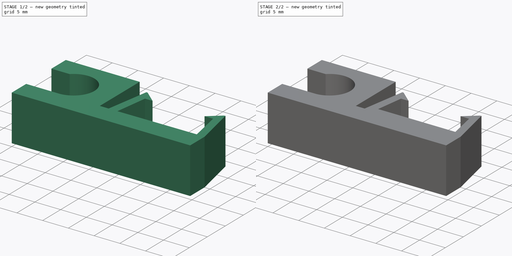
[diagram: build sequence overview — one tinted view per stage of 2, left to right]
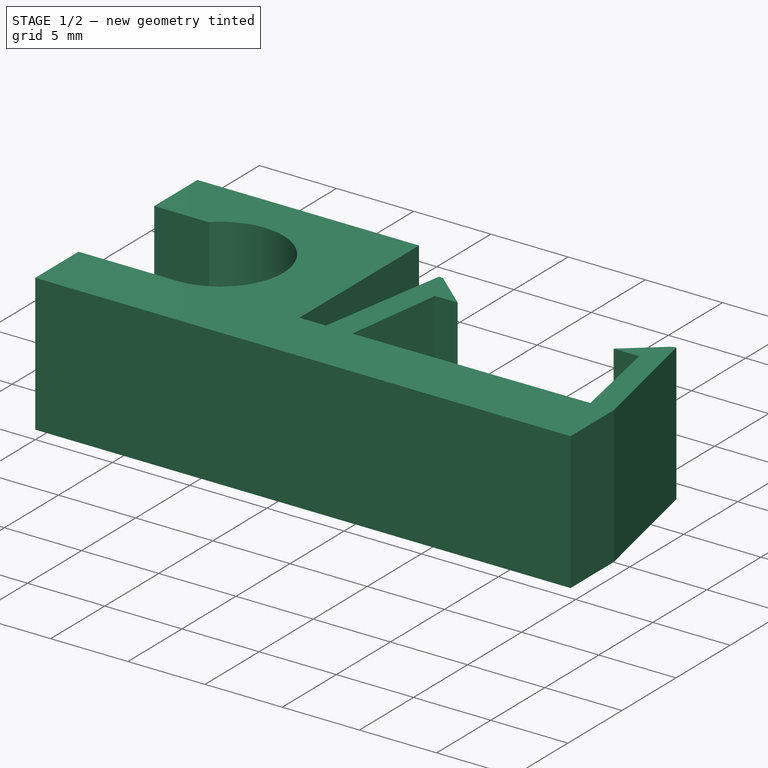
[diagram: stage 1 of 2 — iso view after this stage's code; geometry added in this stage tinted green]
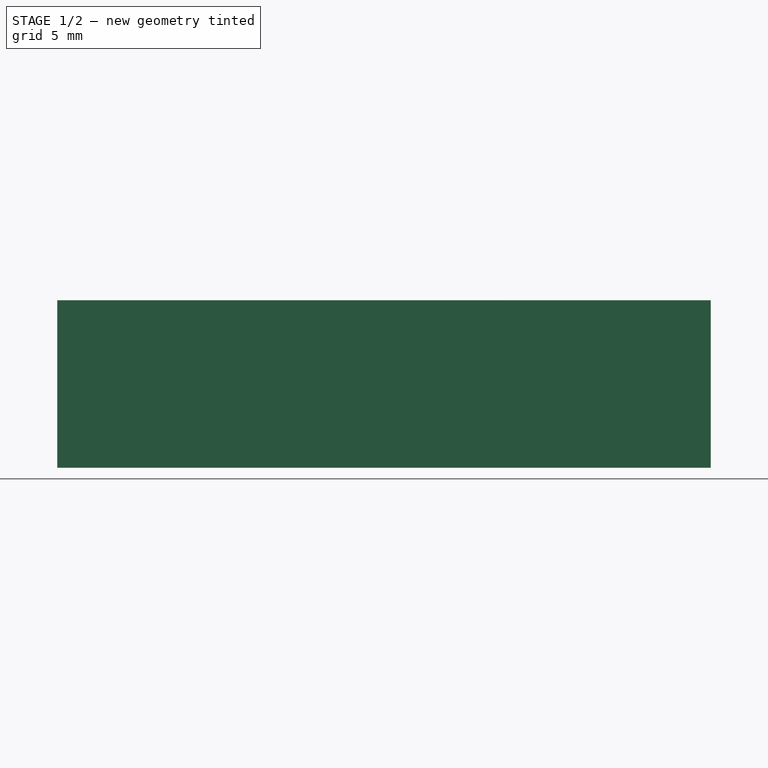
[diagram: stage 1 of 2 — front view after this stage's code; geometry added in this stage tinted green]
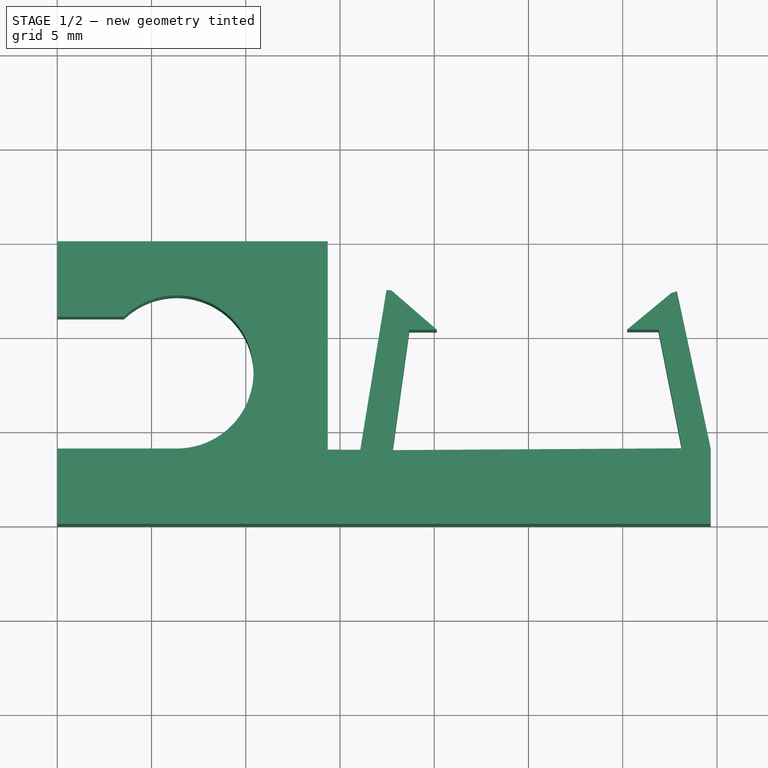
[diagram: stage 1 of 2 — top view after this stage's code; geometry added in this stage tinted green]
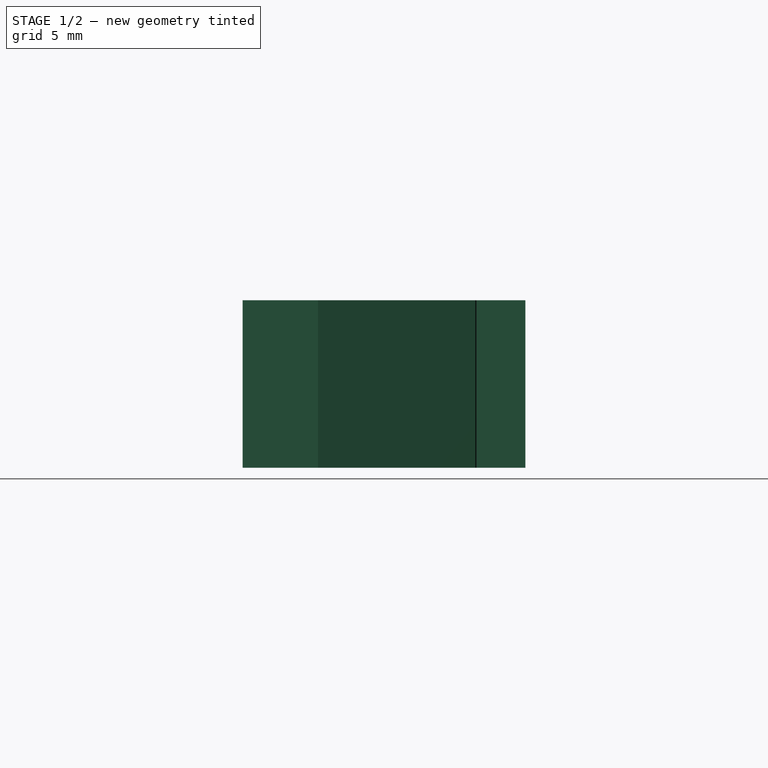
[diagram: stage 1 of 2 — right view after this stage's code; geometry added in this stage tinted green]
FCSTD DOCUMENT  (FreeCAD 0.16R6712 (Git))
Label: Endstopholder2
License: All rights reserved
LicenseURL: http://en.wikipedia.org/wiki/All_rights_reserved
objects: Sketcher::SketchObject×2, PartDesign::Pad×2
note: 6 computed .brp shape members not serialized (recipe doc carries the construction recipe); baked Part::Feature solids carry a one-line shape summary decoded from their .brp

FEATURE [Sketcher::SketchObject] Sketch  label="Holder Sketch"
  sketch-geometry (22):
    g0: LineSegment StartX=0 StartY=0 StartZ=0 EndX=34.67 EndY=0 EndZ=0
    g1: LineSegment StartX=34.67 StartY=0 StartZ=0 EndX=34.67 EndY=4 EndZ=0
    g2: LineSegment StartX=0 StartY=0 StartZ=0 EndX=0 EndY=4 EndZ=0
    g3: LineSegment StartX=0 StartY=4 StartZ=0 EndX=6.35 EndY=4 EndZ=0
    g4: LineSegment [constr] StartX=6.35 StartY=4 StartZ=0 EndX=6.35 EndY=8.064 EndZ=0
    g5: ArcOfCircle CenterX=6.35 CenterY=8.064 CenterZ=0 NormalX=0 NormalY=0 NormalZ=1 Radius=4.064 StartAngle=4.71239 EndAngle=8.61745
    g6: LineSegment StartX=3.54002 StartY=11 StartZ=0 EndX=0 EndY=11 EndZ=0
    g7: LineSegment StartX=0 StartY=11 StartZ=0 EndX=0 EndY=15 EndZ=0
    g8: LineSegment StartX=0 StartY=15 StartZ=0 EndX=14.35 EndY=15 EndZ=0
    g9: LineSegment StartX=14.35 StartY=15 StartZ=0 EndX=14.35 EndY=3.93793 EndZ=0
    g10: LineSegment StartX=14.35 StartY=3.93793 StartZ=0 EndX=16.0742 EndY=3.93474 EndZ=0
    g11: LineSegment StartX=16.0742 StartY=3.93474 StartZ=0 EndX=17.4673 EndY=12.4151 EndZ=0
    g12: LineSegment StartX=17.4673 StartY=12.4151 StartZ=0 EndX=17.7364 EndY=12.3847 EndZ=0
    g13: LineSegment StartX=17.7364 StartY=12.3847 StartZ=0 EndX=20.1372 EndY=10.3057 EndZ=0
    g14: LineSegment StartX=20.1372 StartY=10.3057 StartZ=0 EndX=18.6781 EndY=10.3011 EndZ=0
    g15: LineSegment StartX=18.6781 StartY=10.3011 StartZ=0 EndX=17.7902 EndY=3.91335 EndZ=0
    g16: LineSegment StartX=17.7902 StartY=3.91335 StartZ=0 EndX=33.1463 EndY=4.01163 EndZ=0
    g17: LineSegment StartX=33.1463 StartY=4.01163 StartZ=0 EndX=31.8957 EndY=10.3151 EndZ=0
    g18: LineSegment StartX=31.8957 StartY=10.3151 StartZ=0 EndX=30.2368 EndY=10.3179 EndZ=0
    g19: LineSegment StartX=30.2368 StartY=10.3179 StartZ=0 EndX=32.5843 EndY=12.2565 EndZ=0
    g20: LineSegment StartX=32.5843 StartY=12.2565 StartZ=0 EndX=32.8782 EndY=12.3459 EndZ=0
    g21: LineSegment StartX=32.8782 StartY=12.3459 StartZ=0 EndX=34.67 EndY=4 EndZ=0
  constraints (41):
    c: Coincident(g0,g-1)
    c: Horizontal(g0)
    c: Coincident(g1,g0)
    c: Vertical(g1)
    c: Coincident(g2,g-1)
    c: PointOnObject(g2,g-2)
    c: Coincident(g3,g2)
    c: Horizontal(g3)
    c: Equal(g2,g1)
    c: DistanceY(g-1,g2) = 4
    c: DistanceX(g3) = 6.35
    c: Coincident(g4,g3)
    c: Vertical(g4)
    c: Coincident(g5,g4)
    c: Coincident(g5,g3)
    c: Coincident(g6,g5)
    c: PointOnObject(g6,g-2)
    c: Horizontal(g6)
    c: Coincident(g7,g6)
    c: PointOnObject(g7,g-2)
    c: Coincident(g8,g7)
    c: Horizontal(g8)
    c: Coincident(g9,g8)
    c: Vertical(g9)
    c: DistanceX(g4,g9) = 8
    c: DistanceY(g7,g6) = -4
    c: DistanceY(g6,g2) = -7
    c: Radius(g5) = 4.064
    c: Coincident(g10,g11)
    c: Coincident(g11,g12)
    c: Coincident(g12,g13)
    c: Coincident(g13,g14)
    c: Coincident(g14,g15)
    c: Coincident(g15,g16)
    c: Coincident(g16,g17)
    c: Coincident(g17,g18)
    c: Coincident(g18,g19)
    c: Coincident(g19,g20)
    c: Coincident(g20,g21)
    c: Coincident(g1,g21)
    c: Coincident(g9,g10)
FEATURE [PartDesign::Pad] Pad  label="Holder"
  Length = 8.89
  Length2 = 100
  Sketch = -> Sketch
  Type = 0
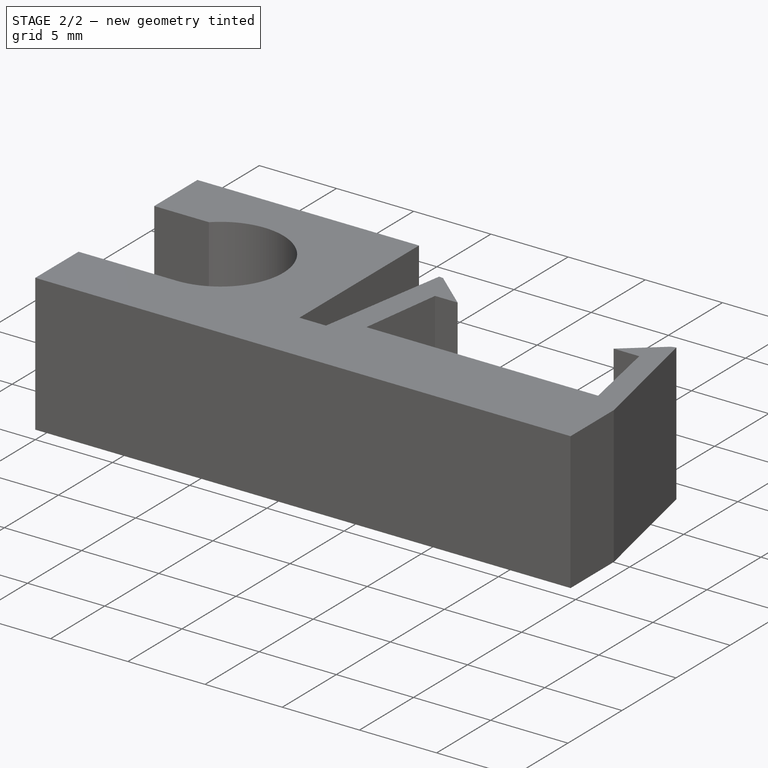
[diagram: stage 2 of 2 — iso view after this stage's code; geometry added in this stage tinted green]
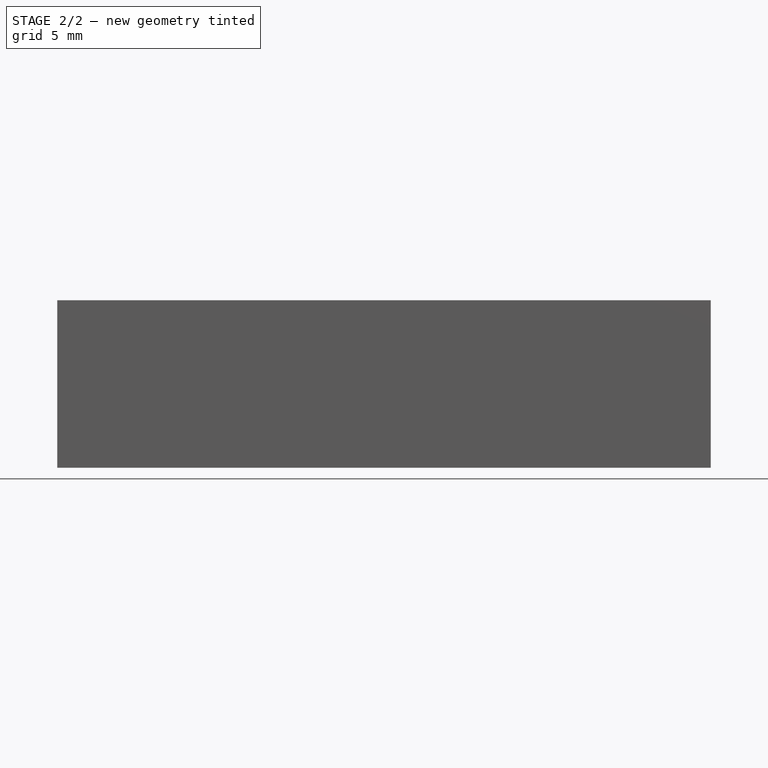
[diagram: stage 2 of 2 — front view after this stage's code; geometry added in this stage tinted green]
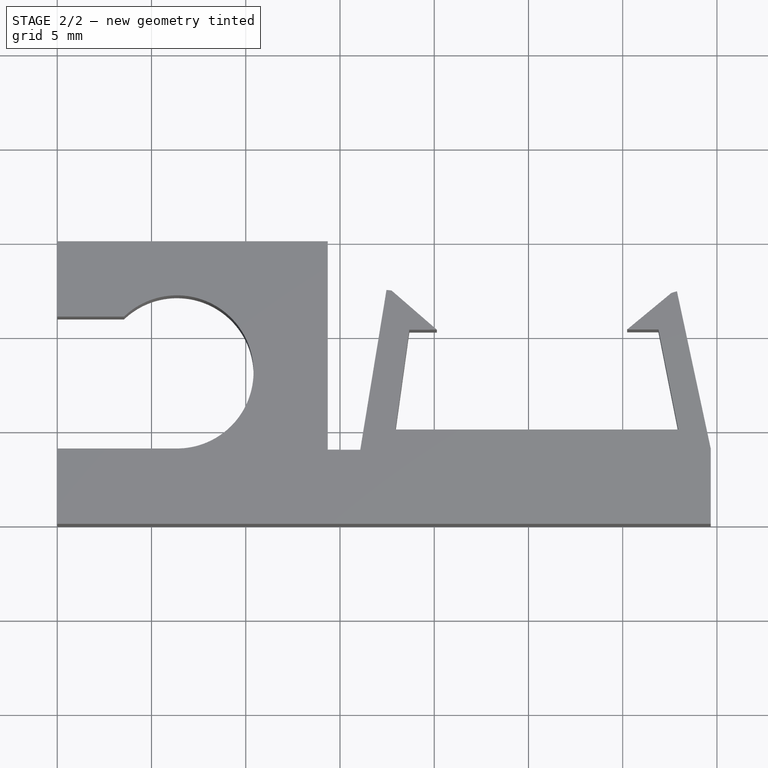
[diagram: stage 2 of 2 — top view after this stage's code; geometry added in this stage tinted green]
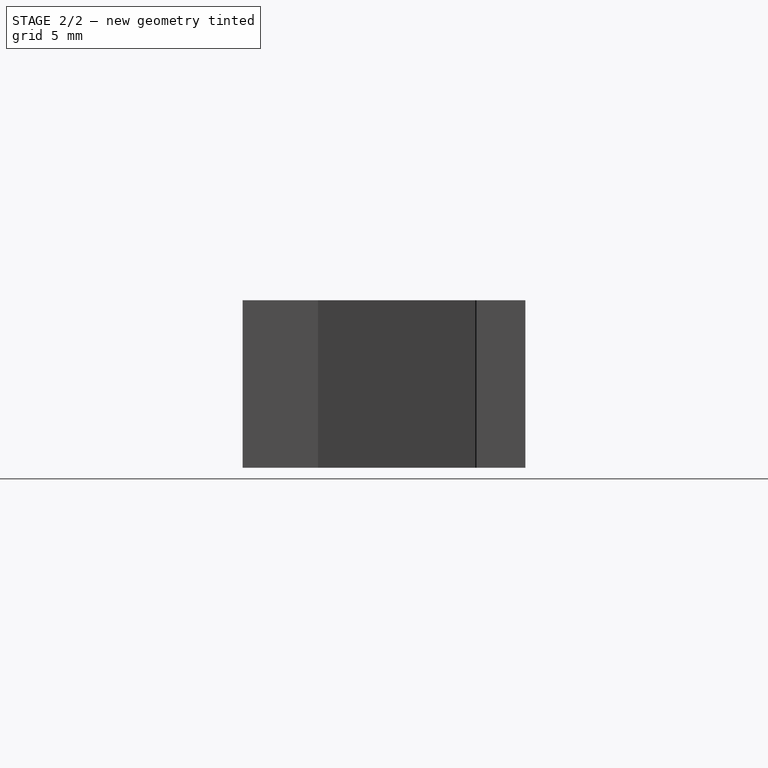
[diagram: stage 2 of 2 — right view after this stage's code; geometry added in this stage tinted green]
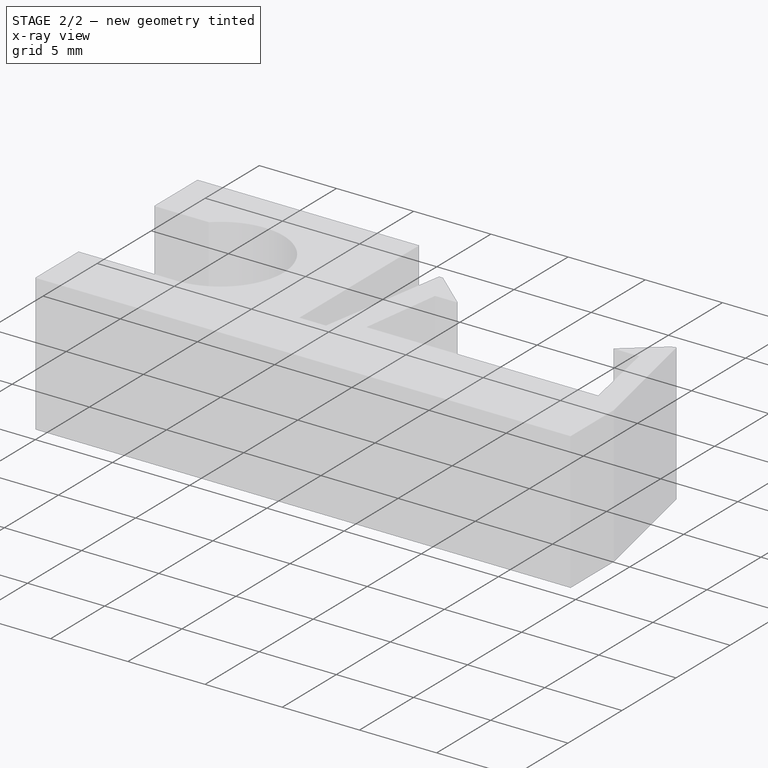
[diagram: stage 2 of 2 — x-ray composite at the iso view; earlier geometry ghosted, this stage's added geometry solid]
FEATURE [Sketcher::SketchObject] Sketch001
  Placement = pos=(0,0,8.89) rot=(0,0,1;0rad)
  Support = -> Pad [Face23]
  sketch-geometry (4):
    g0: LineSegment StartX=16.0954 StartY=3.88941 StartZ=0 EndX=17.9244 EndY=5.00566 EndZ=0
    g1: LineSegment StartX=17.9244 StartY=5.00566 StartZ=0 EndX=33.0576 EndY=5.00566 EndZ=0
    g2: LineSegment StartX=33.0576 StartY=5.00566 StartZ=0 EndX=34.6403 EndY=3.93882 EndZ=0
    g3: LineSegment StartX=34.6403 StartY=3.93882 StartZ=0 EndX=16.0954 EndY=3.88941 EndZ=0
  constraints (5):
    c: Coincident(g0,g1)
    c: Coincident(g1,g2)
    c: Coincident(g2,g3)
    c: Coincident(g3,g0)
    c: Horizontal(g1)
FEATURE [PartDesign::Pad] Pad001
  Length = 1.524
  Length2 = 100
  Reversed = true
  Sketch = -> Sketch001
  Type = 0
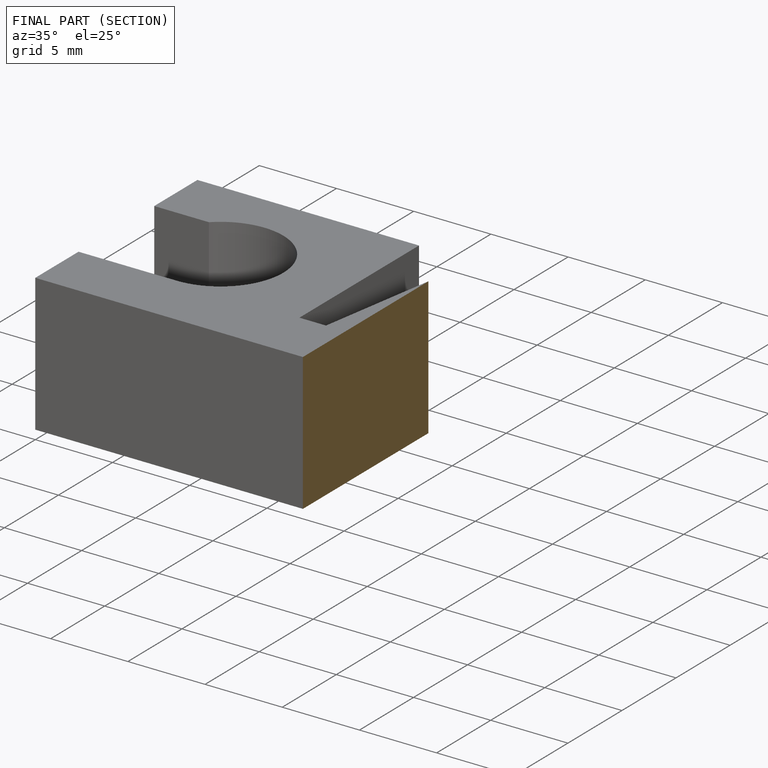
[diagram: finished part — half-section view (interior)]
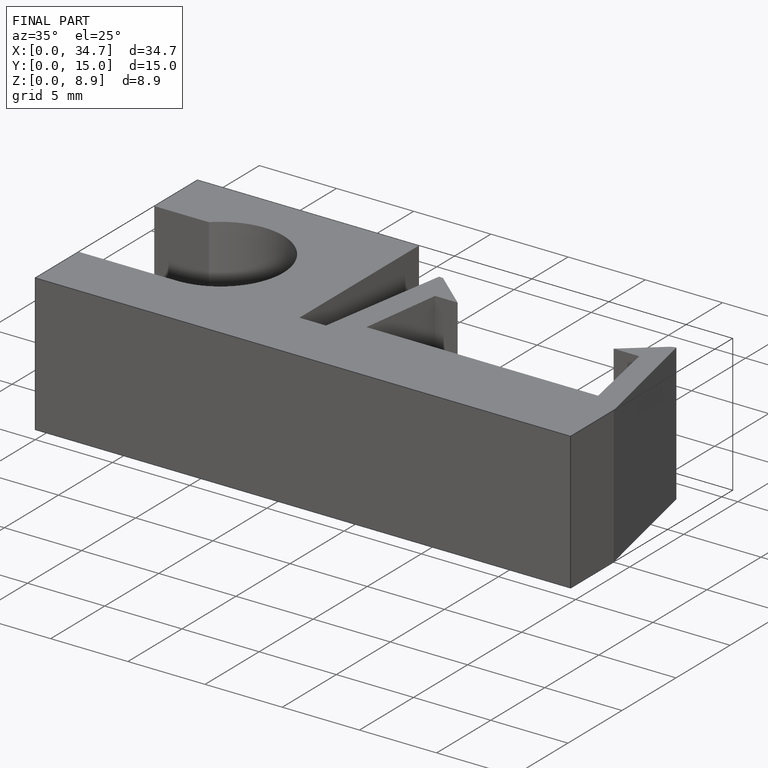
[diagram: finished part — iso view with bounding-box wireframe]
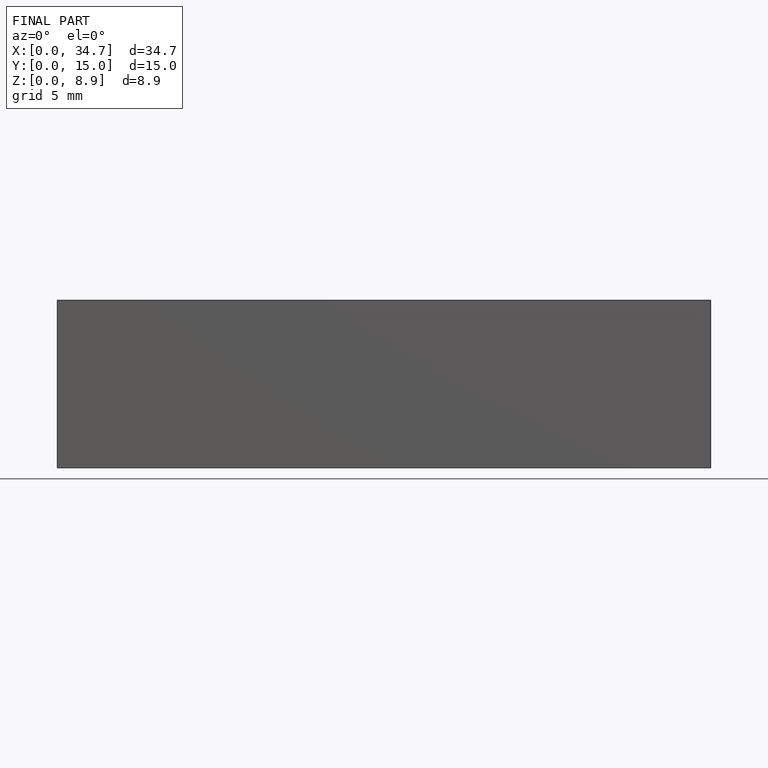
[diagram: finished part — front view with bounding-box wireframe]
